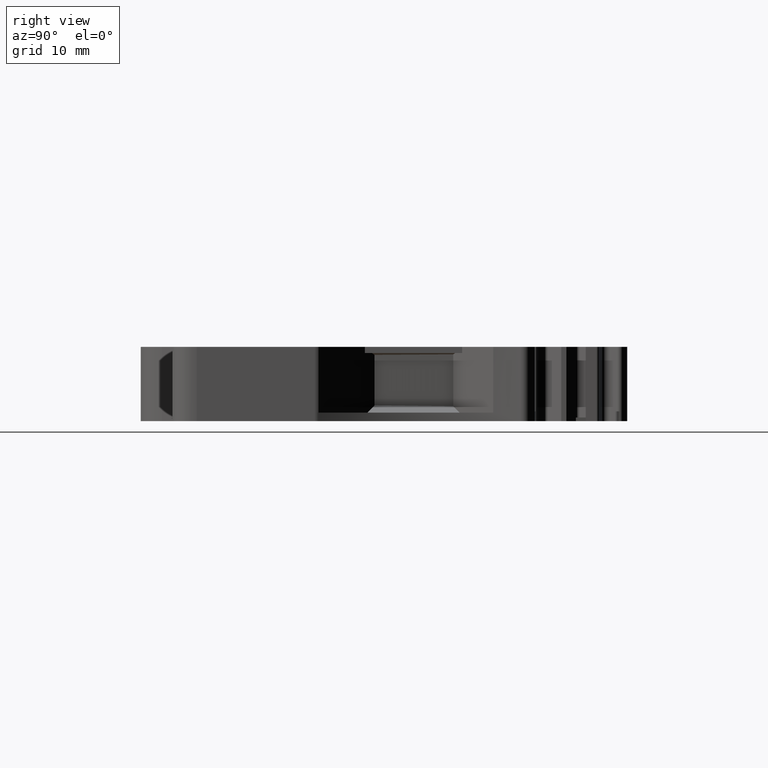
[diagram: clean part render]
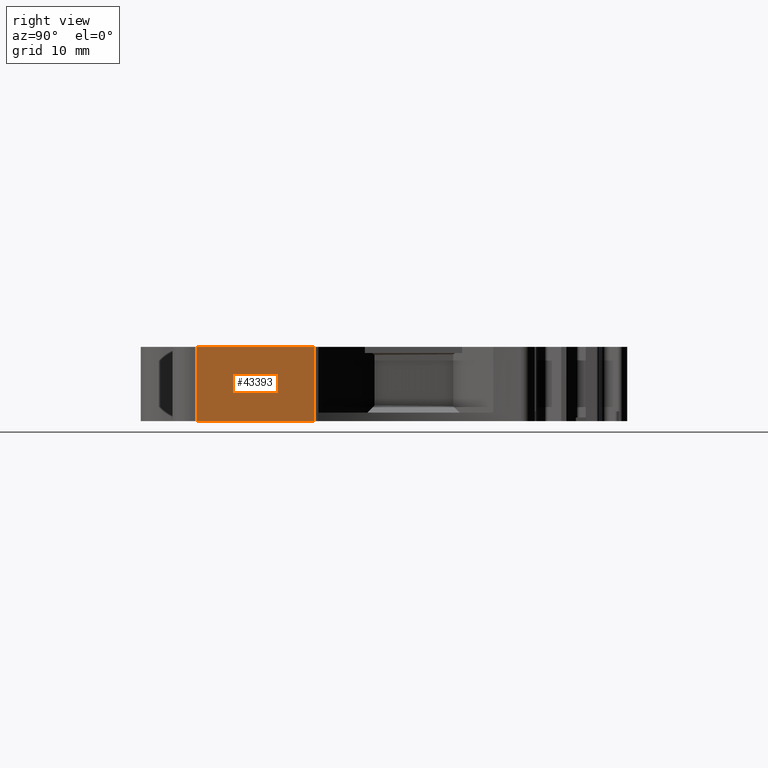
[diagram: same view with one face highlighted and labeled with its STEP entity id]
A machine part, right view. The second image highlights one B-rep face of the part: STEP entity #43393.
In plain terms, the highlighted planar face has unit normal (1, 0, 0).
Its self-contained STEP definition (entity closure, byte-faithful):
#11961=ORIENTED_EDGE('',*,*,#19011,.F.);
#11962=ORIENTED_EDGE('',*,*,#19013,.T.);
#11963=ORIENTED_EDGE('',*,*,#19014,.F.);
#11964=ORIENTED_EDGE('',*,*,#19015,.F.);
#19011=EDGE_CURVE('',#23304,#23305,#28965,.T.);
#19013=EDGE_CURVE('',#23304,#23306,#28966,.T.);
#19014=EDGE_CURVE('',#23307,#23306,#28967,.T.);
#19015=EDGE_CURVE('',#23305,#23307,#28968,.T.);
#23304=VERTEX_POINT('',#69046);
#23305=VERTEX_POINT('',#69048);
#23306=VERTEX_POINT('',#69052);
#23307=VERTEX_POINT('',#69054);
#28965=LINE('',#69047,#34659);
#28966=LINE('',#69051,#34660);
#28967=LINE('',#69053,#34661);
#28968=LINE('',#69055,#34662);
#34659=VECTOR('',#56219,1000.);
#34660=VECTOR('',#56224,1000.);
#34661=VECTOR('',#56225,1000.);
#34662=VECTOR('',#56226,1000.);
#37001=EDGE_LOOP('',(#11961,#11962,#11963,#11964));
#39257=FACE_BOUND('',#37001,.T.);
#41277=PLANE('',#45890);
#43393=ADVANCED_FACE('',(#39257),#41277,.T.);
#45890=AXIS2_PLACEMENT_3D('',#69050,#56222,#56223);
#56219=DIRECTION('',(0.,-5.474673537824E-14,1.));
#56222=DIRECTION('',(1.,0.,0.));
#56223=DIRECTION('',(0.,1.,0.));
#56224=DIRECTION('',(0.,1.,0.));
#56225=DIRECTION('',(0.,-6.556503973622E-13,-1.));
#56226=DIRECTION('',(0.,1.,0.));
#69046=CARTESIAN_POINT('',(20.81144135222,-6.049996463173,-3.6));
#69047=CARTESIAN_POINT('',(20.81144135222,-6.049996463173,-3.6));
#69048=CARTESIAN_POINT('',(20.81144135222,-6.049996463173,2.5));
#69050=CARTESIAN_POINT('',(20.81144135222,-6.049996463174,-2.5));
#69051=CARTESIAN_POINT('',(20.81144135222,-6.049996463173,-3.6));
#69052=CARTESIAN_POINT('',(20.81144135222,3.661356248096,-3.6));
#69053=CARTESIAN_POINT('',(20.81144135222,3.661356248102,2.5));
#69054=CARTESIAN_POINT('',(20.81144135222,3.661356248102,2.5));
#69055=CARTESIAN_POINT('',(20.81144135222,-6.049996463173,2.5));